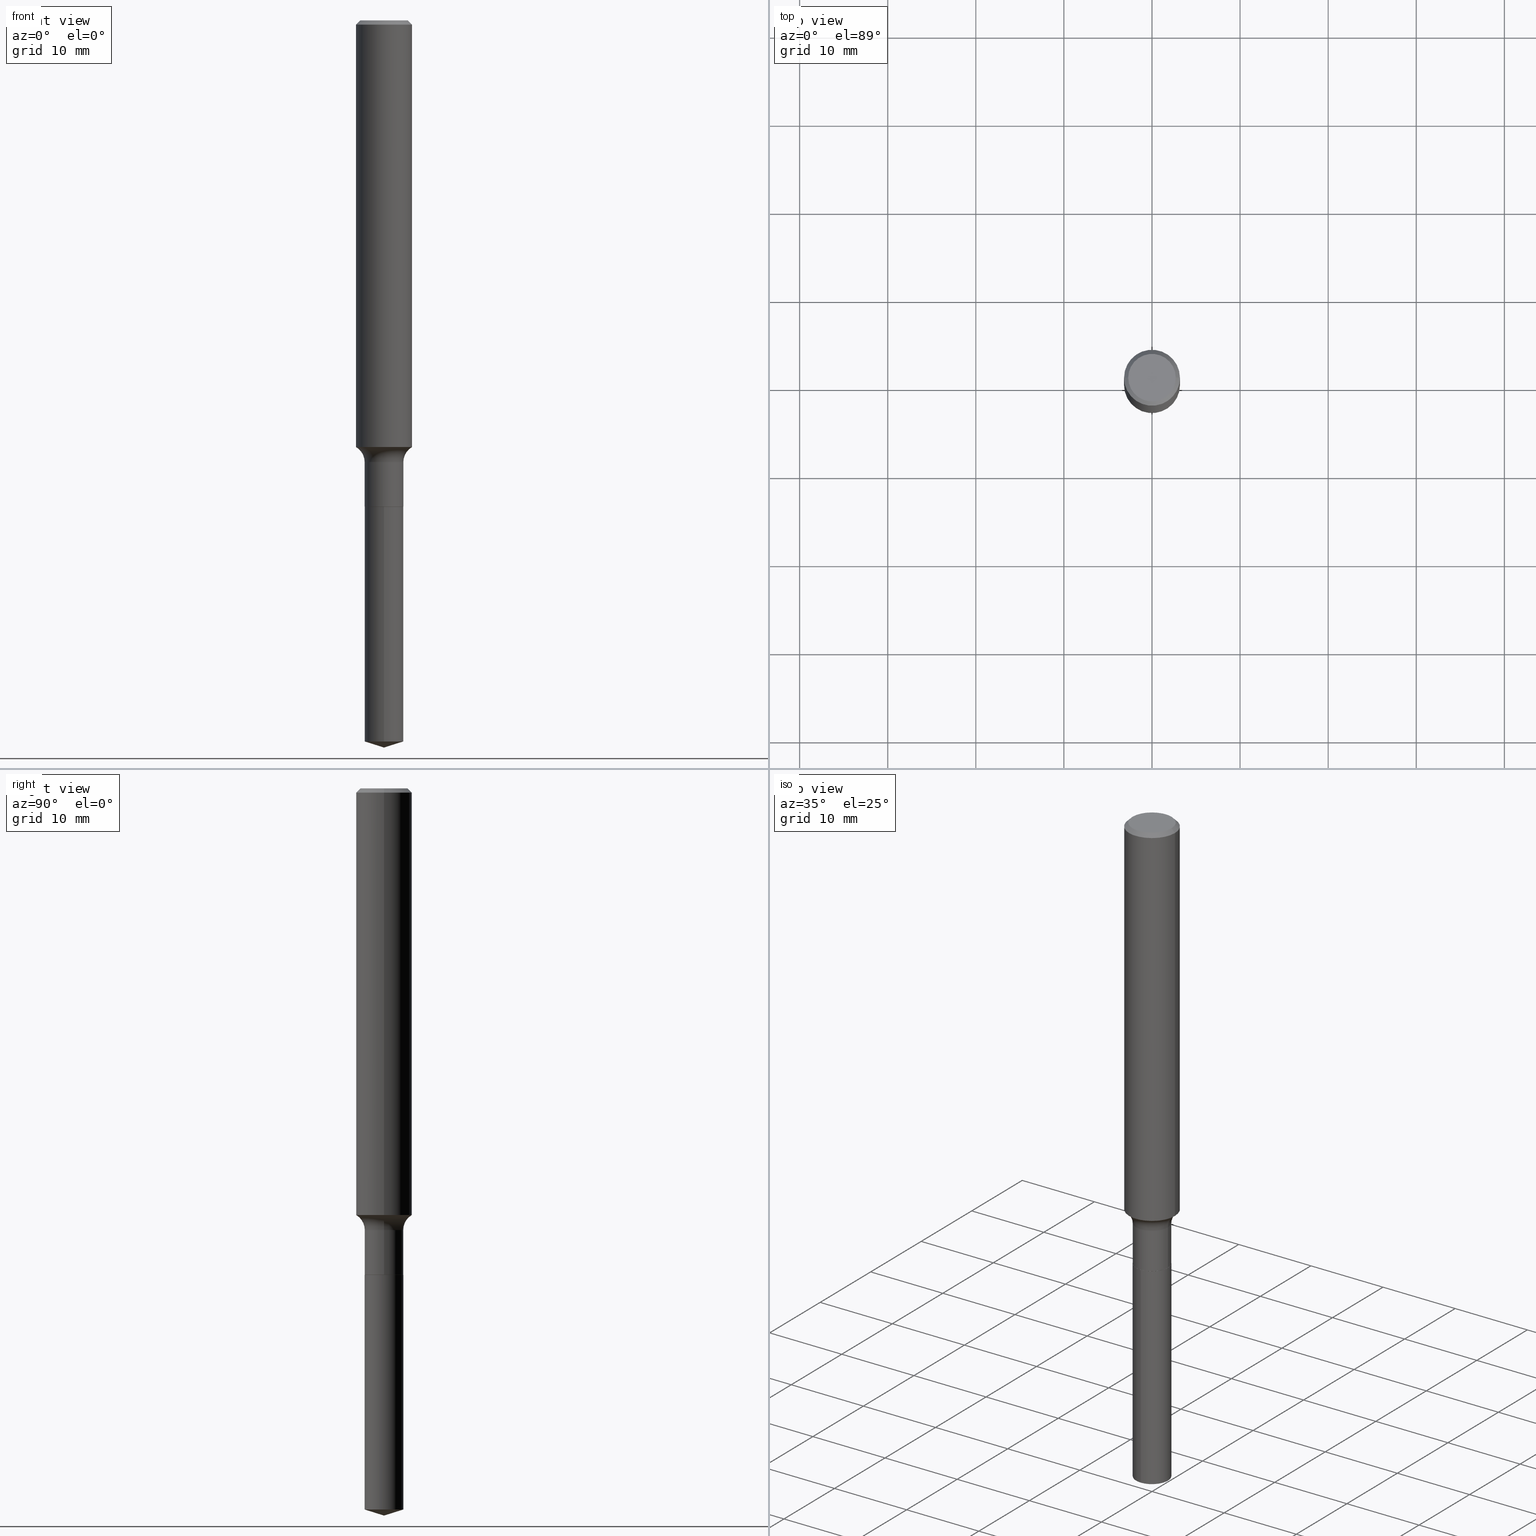
[diagram: canonical four-view strip — front | top / right | iso, engineering-drawing reading convention]
A machine part, canonical four-view strip (front | top / right | iso — engineering-drawing reading convention). The complete STEP part file that produces these views, byte-faithful:
ISO-10303-21;
HEADER;
FILE_DESCRIPTION (( 'STEP AP203' ),
    '1' );
FILE_NAME ('52326.STEP',
    '2024-04-19T13:40:14',
    ( '' ),
    ( '' ),
    'SwSTEP 2.0',
    'SolidWorks 2023',
    '' );
FILE_SCHEMA (( 'CONFIG_CONTROL_DESIGN' ));
ENDSEC;

DATA;
#1 = FACE_OUTER_BOUND ( 'NONE', #270, .T. ) ;
#2 = ORIENTED_EDGE ( 'NONE', *, *, #389, .T. ) ;
#3 = APPROVAL_PERSON_ORGANIZATION ( #450, #483, #37 ) ;
#4 = ORIENTED_EDGE ( 'NONE', *, *, #62, .T. ) ;
#5 = EDGE_CURVE ( 'NONE', #45, #485, #30, .T. ) ;
#6 = AXIS2_PLACEMENT_3D ( 'NONE', #164, #478, #11 ) ;
#7 = DIRECTION ( 'NONE',  ( -2.445468806185136597E-29, 3.491481338843145583E-15, 1.000000000000000000 ) ) ;
#8 = VERTEX_POINT ( 'NONE', #333 ) ;
#9 = APPROVAL ( #373, 'UNSPECIFIED' ) ;
#10 = LINE ( 'NONE', #88, #301 ) ;
#11 = DIRECTION ( 'NONE',  ( 1.000000000000000000, -6.982962677686261977E-15, 0.000000000000000000 ) ) ;
#12 = APPLICATION_CONTEXT ( 'configuration controlled 3d designs of mechanical parts and assemblies' ) ;
#13 = ORIENTED_EDGE ( 'NONE', *, *, #188, .F. ) ;
#14 = CARTESIAN_POINT ( 'NONE',  ( -0.1644999999999999796, -5.723341362551005164E-15, -1.973999999999999977 ) ) ;
#15 = ORIENTED_EDGE ( 'NONE', *, *, #20, .T. ) ;
#16 = AXIS2_PLACEMENT_3D ( 'NONE', #467, #206, #208 ) ;
#17 = DIRECTION ( 'NONE',  ( -2.445468806185136597E-29, 3.491481338843145583E-15, 1.000000000000000000 ) ) ;
#18 = CARTESIAN_POINT ( 'NONE',  ( 0.1250000000000001388, -8.728703347107843249E-16, 6.095220969744926748E-30 ) ) ;
#19 = CIRCLE ( 'NONE', #197, 0.08649999999999997968 ) ;
#20 = EDGE_CURVE ( 'NONE', #103, #485, #354, .T. ) ;
#21 = DIRECTION ( 'NONE',  ( -2.445486309899650954E-29, 3.491456272527711520E-15, 1.000000000000000000 ) ) ;
#22 = DIRECTION ( 'NONE',  ( 1.000000000000000000, -6.982962677686266711E-15, 4.883557194083112901E-29 ) ) ;
#23 = CARTESIAN_POINT ( 'NONE',  ( 5.314003715840301789E-29, -7.586988949306155855E-15, -2.173000000000000043 ) ) ;
#24 = CYLINDRICAL_SURFACE ( 'NONE', #68, 0.1250000000000001388 ) ;
#25 = DIRECTION ( 'NONE',  ( 1.000000000000000000, -6.982962677686266711E-15, 4.876176775795935793E-29 ) ) ;
#26 = CARTESIAN_POINT ( 'NONE',  ( -0.1250000000000001388, 8.881784197001262184E-16, -6.148668862818638533E-30 ) ) ;
#27 = DIRECTION ( 'NONE',  ( -2.445468806185136597E-29, 3.491481338843145583E-15, 1.000000000000000000 ) ) ;
#28 = ADVANCED_FACE ( 'NONE', ( #360 ), #24, .T. ) ;
#29 = ORIENTED_EDGE ( 'NONE', *, *, #428, .T. ) ;
#30 = LINE ( 'NONE', #69, #418 ) ;
#31 = PRODUCT ( '52326', '52326', '', ( #406 ) ) ;
#32 = CARTESIAN_POINT ( 'NONE',  ( -0.08649999999999997968, 6.146194664324865164E-16, -4.254878853070492988E-30 ) ) ;
#33 = DIRECTION ( 'NONE',  ( 1.000000000000000000, -6.982962677686265922E-15, 4.876176775795935793E-29 ) ) ;
#34 = COORDINATED_UNIVERSAL_TIME_OFFSET ( 5, 0, .BEHIND. ) ;
#35 = APPROVAL_STATUS ( 'not_yet_approved' ) ;
#36 = LOCAL_TIME ( 9, 40, 14.00000000000000000, #303 ) ;
#37 = APPROVAL_ROLE ( '' ) ;
#38 = DATE_AND_TIME ( #419, #319 ) ;
#39 = ADVANCED_FACE ( 'NONE', ( #250 ), #179, .F. ) ;
#40 = AXIS2_PLACEMENT_3D ( 'NONE', #133, #283, #139 ) ;
#41 = AXIS2_PLACEMENT_3D ( 'NONE', #172, #175, #185 ) ;
#42 = APPROVAL_DATE_TIME ( #38, #483 ) ;
#43 = LOCAL_TIME ( 9, 40, 14.00000000000000000, #34 ) ;
#44 = EDGE_CURVE ( 'NONE', #45, #315, #491, .T. ) ;
#45 = VERTEX_POINT ( 'NONE', #116 ) ;
#46 = FACE_OUTER_BOUND ( 'NONE', #347, .T. ) ;
#47 = EDGE_LOOP ( 'NONE', ( #479, #233, #130, #289 ) ) ;
#48 = CIRCLE ( 'NONE', #379, 0.08599999999999997924 ) ;
#49 = CYLINDRICAL_SURFACE ( 'NONE', #380, 0.08649999999999997968 ) ;
#50 = CYLINDRICAL_SURFACE ( 'NONE', #489, 0.08649999999999997968 ) ;
#51 = VERTEX_POINT ( 'NONE', #330 ) ;
#52 = CARTESIAN_POINT ( 'NONE',  ( 5.314003715840301789E-29, -7.586988949306155855E-15, -2.173000000000000043 ) ) ;
#53 = DIRECTION ( 'NONE',  ( -1.000000000000000000, 7.105427357601008170E-15, 0.000000000000000000 ) ) ;
#54 = DIRECTION ( 'NONE',  ( -6.982962677686265922E-15, -1.000000000000000000, 3.158205773022270164E-15 ) ) ;
#55 = ADVANCED_FACE ( 'NONE', ( #144 ), #150, .F. ) ;
#56 = CARTESIAN_POINT ( 'NONE',  ( 5.314003715840301789E-29, -7.586988949306155855E-15, -2.173000000000000043 ) ) ;
#57 = AXIS2_PLACEMENT_3D ( 'NONE', #257, #331, #364 ) ;
#58 = FACE_OUTER_BOUND ( 'NONE', #465, .T. ) ;
#59 = CC_DESIGN_SECURITY_CLASSIFICATION ( #440, ( #456 ) ) ;
#60 = DIRECTION ( 'NONE',  ( -2.445468806185136597E-29, 3.491481338843145583E-15, 1.000000000000000000 ) ) ;
#61 = CARTESIAN_POINT ( 'NONE',  ( 5.312780981437210108E-29, -7.585243208636733562E-15, -2.172500000000000320 ) ) ;
#62 = EDGE_CURVE ( 'NONE', #315, #45, #221, .T. ) ;
#63 = EDGE_LOOP ( 'NONE', ( #438, #170, #385, #288 ) ) ;
#64 = DIRECTION ( 'NONE',  ( -2.445468806185136877E-29, 3.491481338843145188E-15, 1.000000000000000000 ) ) ;
#65 = CARTESIAN_POINT ( 'NONE',  ( 5.314003715840301789E-29, -7.586988949306155855E-15, -2.173000000000000043 ) ) ;
#66 = ORIENTED_EDGE ( 'NONE', *, *, #474, .T. ) ;
#67 =( NAMED_UNIT ( * ) PLANE_ANGLE_UNIT ( ) SI_UNIT ( $, .RADIAN. ) );
#68 = AXIS2_PLACEMENT_3D ( 'NONE', #111, #27, #222 ) ;
#69 = CARTESIAN_POINT ( 'NONE',  ( 6.146194664325395673E-16, 0.08649999999999240241, -2.173000000000000487 ) ) ;
#70 = VERTEX_POINT ( 'NONE', #323 ) ;
#71 = DIRECTION ( 'NONE',  ( -2.445468806185136597E-29, 3.491481338843145583E-15, 1.000000000000000000 ) ) ;
#72 = PERSON_AND_ORGANIZATION_ROLE ( 'creator' ) ;
#73 = EDGE_CURVE ( 'NONE', #8, #459, #136, .T. ) ;
#74 = APPROVAL_DATE_TIME ( #122, #9 ) ;
#75 = LOCAL_TIME ( 9, 40, 14.00000000000000000, #335 ) ;
#76 = AXIS2_PLACEMENT_3D ( 'NONE', #317, #101, #213 ) ;
#77 = EDGE_CURVE ( 'NONE', #371, #99, #227, .T. ) ;
#78 = PERSON_AND_ORGANIZATION_ROLE ( 'design_supplier' ) ;
#79 = COORDINATED_UNIVERSAL_TIME_OFFSET ( 5, 0, .BEHIND. ) ;
#80 = CONICAL_SURFACE ( 'NONE', #232, 0.08599999999999997924, 0.7853981633975507526 ) ;
#81 = CONICAL_SURFACE ( 'NONE', #446, 0.08599999999999997924, 0.7853981633975507526 ) ;
#82 = TOROIDAL_SURFACE ( 'NONE', #486, 0.1644999999999999796, 0.07800000000000004152 ) ;
#83 = ADVANCED_FACE ( 'NONE', ( #1 ), #300, .T. ) ;
#84 = ORIENTED_EDGE ( 'NONE', *, *, #339, .F. ) ;
#85 = VERTEX_POINT ( 'NONE', #328 ) ;
#86 = DIRECTION ( 'NONE',  ( -2.445468806185136597E-29, 3.491481338843145583E-15, 1.000000000000000000 ) ) ;
#87 = CC_DESIGN_DATE_AND_TIME_ASSIGNMENT ( #105, #212, ( #487 ) ) ;
#88 = CARTESIAN_POINT ( 'NONE',  ( -6.040262716198086804E-16, -0.08650000000000757083, -2.172999999999999599 ) ) ;
#89 = DIRECTION ( 'NONE',  ( 1.000000000000000000, -6.982962677686266711E-15, 0.000000000000000000 ) ) ;
#90 = CARTESIAN_POINT ( 'NONE',  ( 4.585254011597165626E-31, -6.546527510330947764E-17, -0.01875000000000014155 ) ) ;
#91 = AXIS2_PLACEMENT_3D ( 'NONE', #262, #21, #326 ) ;
#92 = CARTESIAN_POINT ( 'NONE',  ( 7.947831174227997735E-29, -1.134723288571506362E-14, -3.250000000000000000 ) ) ;
#93 = DIRECTION ( 'NONE',  ( 7.105427357601001859E-15, 1.000000000000000000, -3.491481338843145583E-15 ) ) ;
#94 = VERTEX_POINT ( 'NONE', #207 ) ;
#95 = EDGE_CURVE ( 'NONE', #307, #162, #131, .T. ) ;
#96 = CARTESIAN_POINT ( 'NONE',  ( 5.312780981437210108E-29, -7.585243208636733562E-15, -2.172500000000000320 ) ) ;
#97 = ADVANCED_BREP_SHAPE_REPRESENTATION ( '52326', ( #205, #367, #399 ), #466 ) ;
#98 = DIRECTION ( 'NONE',  ( -2.445468806185136597E-29, 3.491481338843145583E-15, 1.000000000000000000 ) ) ;
#99 = VERTEX_POINT ( 'NONE', #404 ) ;
#100 = CYLINDRICAL_SURFACE ( 'NONE', #342, 0.1250000000000001388 ) ;
#101 = DIRECTION ( 'NONE',  ( -2.445468806185136597E-29, 3.491481338843145583E-15, 1.000000000000000000 ) ) ;
#102 = ORIENTED_EDGE ( 'NONE', *, *, #428, .F. ) ;
#103 = VERTEX_POINT ( 'NONE', #275 ) ;
#104 = ORGANIZATION ( 'UNSPECIFIED', 'UNSPECIFIED', '' ) ;
#105 = DATE_AND_TIME ( #439, #75 ) ;
#106 = CLOSED_SHELL ( 'NONE', ( #256, #451, #416, #230, #480 ) ) ;
#107 = CARTESIAN_POINT ( 'NONE',  ( 0.08649999999999997968, -6.040262716198619285E-16, 4.217892911063483312E-30 ) ) ;
#108 = EDGE_CURVE ( 'NONE', #99, #51, #437, .T. ) ;
#109 = ORIENTED_EDGE ( 'NONE', *, *, #62, .F. ) ;
#110 = DIRECTION ( 'NONE',  ( -6.982962677686265922E-15, -1.000000000000000000, 3.158205773022270164E-15 ) ) ;
#111 = CARTESIAN_POINT ( 'NONE',  ( 0.000000000000000000, 0.000000000000000000, 0.000000000000000000 ) ) ;
#112 = CARTESIAN_POINT ( 'NONE',  ( 6.146194664325655011E-16, 0.08649999999999240241, -2.173000000000000487 ) ) ;
#113 = AXIS2_PLACEMENT_3D ( 'NONE', #430, #203, #443 ) ;
#114 = CIRCLE ( 'NONE', #6, 0.08649999999999996581 ) ;
#115 = CIRCLE ( 'NONE', #417, 0.08599999999999997924 ) ;
#116 = CARTESIAN_POINT ( 'NONE',  ( 6.146194664325653039E-16, 0.08649999999998869704, -3.222726654761968401 ) ) ;
#117 = APPROVAL_DATE_TIME ( #449, #118 ) ;
#118 = APPROVAL ( #35, 'UNSPECIFIED' ) ;
#119 = PERSON_AND_ORGANIZATION ( #378, #104 ) ;
#120 = EDGE_CURVE ( 'NONE', #70, #8, #48, .T. ) ;
#121 = CIRCLE ( 'NONE', #182, 0.07800000000000002764 ) ;
#122 = DATE_AND_TIME ( #453, #36 ) ;
#123 = EDGE_LOOP ( 'NONE', ( #84, #484 ) ) ;
#124 = DIRECTION ( 'NONE',  ( -2.445468806185136597E-29, 3.491481338843145583E-15, 1.000000000000000000 ) ) ;
#125 = ORIENTED_EDGE ( 'NONE', *, *, #210, .F. ) ;
#126 = EDGE_LOOP ( 'NONE', ( #29, #195 ) ) ;
#127 = CARTESIAN_POINT ( 'NONE',  ( -6.040262716197829438E-16, -0.08650000000001123457, -3.222726654761967069 ) ) ;
#128 = PLANE ( 'NONE',  #113 ) ;
#129 = EDGE_CURVE ( 'NONE', #194, #94, #114, .T. ) ;
#130 = ORIENTED_EDGE ( 'NONE', *, *, #349, .F. ) ;
#131 = CIRCLE ( 'NONE', #261, 0.1062499999999999972 ) ;
#132 = DIRECTION ( 'NONE',  ( -2.445468806185136597E-29, 3.491481338843145583E-15, 1.000000000000000000 ) ) ;
#133 = CARTESIAN_POINT ( 'NONE',  ( 0.1644999999999999796, -8.040881523355760982E-15, -1.973999999999999977 ) ) ;
#134 = CARTESIAN_POINT ( 'NONE',  ( 7.947754436030587061E-29, -1.134734182392194108E-14, -3.250000000000000000 ) ) ;
#135 = CARTESIAN_POINT ( 'NONE',  ( -0.1062499999999999972, 7.746724220558198188E-16, 6.505936120465015526E-18 ) ) ;
#136 = LINE ( 'NONE', #488, #374 ) ;
#137 = DIRECTION ( 'NONE',  ( -2.445468806185136597E-29, 3.491481338843145583E-15, 1.000000000000000000 ) ) ;
#138 = EDGE_CURVE ( 'NONE', #94, #194, #290, .T. ) ;
#139 = DIRECTION ( 'NONE',  ( 1.000000000000000000, -6.982962677686268288E-15, 0.000000000000000000 ) ) ;
#140 = LENGTH_MEASURE_WITH_UNIT ( LENGTH_MEASURE( 0.02539999999999999897 ), #176 );
#141 = CIRCLE ( 'NONE', #338, 0.1250000000000002776 ) ;
#142 = DIRECTION ( 'NONE',  ( 1.000000000000000000, -6.982962677686270655E-15, 0.000000000000000000 ) ) ;
#143 = EDGE_LOOP ( 'NONE', ( #329, #481, #239 ) ) ;
#144 = FACE_OUTER_BOUND ( 'NONE', #462, .T. ) ;
#145 = ORIENTED_EDGE ( 'NONE', *, *, #171, .F. ) ;
#146 =( CONVERSION_BASED_UNIT ( 'INCH', #140 ) LENGTH_UNIT ( ) NAMED_UNIT ( #490 ) );
#147 = EDGE_CURVE ( 'NONE', #99, #371, #141, .T. ) ;
#148 = ORIENTED_EDGE ( 'NONE', *, *, #95, .F. ) ;
#149 = PLANE ( 'NONE',  #355 ) ;
#150 = TOROIDAL_SURFACE ( 'NONE', #251, 0.1644999999999999796, 0.07800000000000004152 ) ;
#151 = CONICAL_SURFACE ( 'NONE', #16, 124.8659371009128307, 1.265363707695886575 ) ;
#152 = ADVANCED_FACE ( 'NONE', ( #395 ), #388, .T. ) ;
#153 = DATE_AND_TIME ( #265, #226 ) ;
#154 = PRODUCT_RELATED_PRODUCT_CATEGORY ( 'detail', '', ( #31 ) ) ;
#155 = CIRCLE ( 'NONE', #40, 0.07800000000000002764 ) ;
#156 = EDGE_CURVE ( 'NONE', #371, #94, #121, .T. ) ;
#157 = CC_DESIGN_APPROVAL ( #9, ( #456 ) ) ;
#158 = CARTESIAN_POINT ( 'NONE',  ( 0.000000000000000000, 0.000000000000000000, 0.000000000000000000 ) ) ;
#159 = DIRECTION ( 'NONE',  ( -2.445486309899651234E-29, 3.491456272527711520E-15, 1.000000000000000000 ) ) ;
#160 = EDGE_CURVE ( 'NONE', #371, #444, #321, .T. ) ;
#161 = FACE_OUTER_BOUND ( 'NONE', #126, .T. ) ;
#162 = VERTEX_POINT ( 'NONE', #135 ) ;
#163 = DIRECTION ( 'NONE',  ( -2.445486309899650954E-29, 3.491456272527711520E-15, 1.000000000000000000 ) ) ;
#164 = CARTESIAN_POINT ( 'NONE',  ( 4.827355423409459288E-29, -6.892184162876369824E-15, -1.973999999999999977 ) ) ;
#165 = AXIS2_PLACEMENT_3D ( 'NONE', #65, #216, #110 ) ;
#166 = ORIENTED_EDGE ( 'NONE', *, *, #156, .T. ) ;
#167 = AXIS2_PLACEMENT_3D ( 'NONE', #434, #98, #89 ) ;
#168 = DIRECTION ( 'NONE',  ( 1.000000000000000000, -6.982962677686266711E-15, 4.876176775795935793E-29 ) ) ;
#169 = CARTESIAN_POINT ( 'NONE',  ( 4.585254011597165626E-31, -6.546527510330947764E-17, -0.01875000000000014155 ) ) ;
#170 = ORIENTED_EDGE ( 'NONE', *, *, #44, .T. ) ;
#171 = EDGE_CURVE ( 'NONE', #85, #459, #240, .T. ) ;
#172 = CARTESIAN_POINT ( 'NONE',  ( 7.881095879197450537E-29, -1.125206366251435864E-14, -3.222726654761967957 ) ) ;
#173 = CARTESIAN_POINT ( 'NONE',  ( -0.1250000000000000000, 8.074050596074738982E-16, -0.01875000000000014155 ) ) ;
#174 = DIRECTION ( 'NONE',  ( -2.445468806185136597E-29, 3.491481338843145583E-15, 1.000000000000000000 ) ) ;
#175 = DIRECTION ( 'NONE',  ( -2.445486309899650954E-29, 3.491456272527711520E-15, 1.000000000000000000 ) ) ;
#176 =( LENGTH_UNIT ( ) NAMED_UNIT ( * ) SI_UNIT ( $, .METRE. ) );
#177 = CARTESIAN_POINT ( 'NONE',  ( -0.08599999999999997924, -6.975922196552469152E-15, -2.173000000000000043 ) ) ;
#178 = ORIENTED_EDGE ( 'NONE', *, *, #156, .F. ) ;
#179 = PLANE ( 'NONE',  #423 ) ;
#180 = CC_DESIGN_APPROVAL ( #483, ( #440 ) ) ;
#181 = PERSON_AND_ORGANIZATION_ROLE ( 'design_owner' ) ;
#182 = AXIS2_PLACEMENT_3D ( 'NONE', #14, #93, #53 ) ;
#183 = DIRECTION ( 'NONE',  ( -2.445486309899651234E-29, 3.491456272527711520E-15, 1.000000000000000000 ) ) ;
#184 = ADVANCED_FACE ( 'NONE', ( #248 ), #81, .T. ) ;
#185 = DIRECTION ( 'NONE',  ( -6.982962677686265922E-15, -1.000000000000000000, 6.316411546044540328E-15 ) ) ;
#186 = DIRECTION ( 'NONE',  ( 2.445486309899650674E-29, -3.491456272527711520E-15, -1.000000000000000000 ) ) ;
#187 = APPROVAL_PERSON_ORGANIZATION ( #445, #118, #223 ) ;
#188 = EDGE_CURVE ( 'NONE', #99, #194, #155, .T. ) ;
#189 = COORDINATED_UNIVERSAL_TIME_OFFSET ( 5, 0, .BEHIND. ) ;
#190 = CIRCLE ( 'NONE', #287, 0.08649999999999997968 ) ;
#191 = AXIS2_PLACEMENT_3D ( 'NONE', #435, #340, #461 ) ;
#192 = VECTOR ( 'NONE', #64, 39.37007874015748143 ) ;
#193 = CC_DESIGN_PERSON_AND_ORGANIZATION_ASSIGNMENT ( #334, #181, ( #31 ) ) ;
#194 = VERTEX_POINT ( 'NONE', #286 ) ;
#195 = ORIENTED_EDGE ( 'NONE', *, *, #95, .T. ) ;
#196 = CYLINDRICAL_SURFACE ( 'NONE', #269, 0.08649999999999997968 ) ;
#197 = AXIS2_PLACEMENT_3D ( 'NONE', #348, #163, #54 ) ;
#198 = ORIENTED_EDGE ( 'NONE', *, *, #73, .T. ) ;
#199 = EDGE_CURVE ( 'NONE', #459, #194, #279, .T. ) ;
#200 = DIRECTION ( 'NONE',  ( 1.000000000000000000, -6.982962677686266711E-15, 4.876176775795935793E-29 ) ) ;
#201 = DIRECTION ( 'NONE',  ( -2.445486309899650954E-29, 3.491456272527711520E-15, 1.000000000000000000 ) ) ;
#202 = DIRECTION ( 'NONE',  ( -6.659769872151621044E-15, -0.9537169507482251563, 0.3007057995042787257 ) ) ;
#203 = DIRECTION ( 'NONE',  ( 2.438088387897960049E-29, -3.491481338843145188E-15, -1.000000000000000000 ) ) ;
#204 = EDGE_LOOP ( 'NONE', ( #15, #2 ) ) ;
#205 = MANIFOLD_SOLID_BREP ( 'Body-Move/Copy2[1]', #106 ) ;
#206 = DIRECTION ( 'NONE',  ( -2.445486309899650954E-29, 3.491456272527711520E-15, 1.000000000000000000 ) ) ;
#207 = CARTESIAN_POINT ( 'NONE',  ( -0.08649999999999996581, -6.624094219324065275E-15, -1.973999999999999977 ) ) ;
#208 = DIRECTION ( 'NONE',  ( -6.982962677686265922E-15, -1.000000000000000000, 3.500519750498767146E-15 ) ) ;
#209 = DIRECTION ( 'NONE',  ( -1.000000000000000000, 6.982962677686266711E-15, 0.000000000000000000 ) ) ;
#210 = EDGE_CURVE ( 'NONE', #70, #85, #362, .T. ) ;
#211 = EDGE_LOOP ( 'NONE', ( #217, #214, #294, #309 ) ) ;
#212 = DATE_TIME_ROLE ( 'creation_date' ) ;
#213 = DIRECTION ( 'NONE',  ( 1.000000000000000000, -6.982962677686261977E-15, 0.000000000000000000 ) ) ;
#214 = ORIENTED_EDGE ( 'NONE', *, *, #77, .T. ) ;
#215 = DIRECTION ( 'NONE',  ( 6.982962677686265922E-15, 1.000000000000000000, -3.491456272527711520E-15 ) ) ;
#216 = DIRECTION ( 'NONE',  ( -2.445486309899650954E-29, 3.491456272527711520E-15, 1.000000000000000000 ) ) ;
#217 = ORIENTED_EDGE ( 'NONE', *, *, #160, .F. ) ;
#218 = VECTOR ( 'NONE', #202, 39.37007874015748143 ) ;
#219 = ORIENTED_EDGE ( 'NONE', *, *, #147, .F. ) ;
#220 = EDGE_CURVE ( 'NONE', #444, #51, #298, .T. ) ;
#221 = CIRCLE ( 'NONE', #91, 0.08649999999999997968 ) ;
#222 = DIRECTION ( 'NONE',  ( 1.000000000000000000, -6.982962677686266711E-15, 4.876176775795935793E-29 ) ) ;
#223 = APPROVAL_ROLE ( '' ) ;
#224 = DIRECTION ( 'NONE',  ( 0.000000000000000000, 0.000000000000000000, 1.000000000000000000 ) ) ;
#225 = SHAPE_DEFINITION_REPRESENTATION ( #413, #97 ) ;
#226 = LOCAL_TIME ( 9, 40, 14.00000000000000000, #189 ) ;
#227 = CIRCLE ( 'NONE', #191, 0.1250000000000002776 ) ;
#228 = CC_DESIGN_DATE_AND_TIME_ASSIGNMENT ( #153, #377, ( #440 ) ) ;
#229 = PERSON_AND_ORGANIZATION_ROLE ( 'creator' ) ;
#230 = ADVANCED_FACE ( 'NONE', ( #238 ), #50, .T. ) ;
#231 = CIRCLE ( 'NONE', #424, 0.1062499999999999972 ) ;
#232 = AXIS2_PLACEMENT_3D ( 'NONE', #52, #17, #272 ) ;
#233 = ORIENTED_EDGE ( 'NONE', *, *, #210, .T. ) ;
#234 = ORIENTED_EDGE ( 'NONE', *, *, #129, .F. ) ;
#235 = CARTESIAN_POINT ( 'NONE',  ( 0.000000000000000000, 0.000000000000000000, 0.000000000000000000 ) ) ;
#236 = ADVANCED_FACE ( 'NONE', ( #161 ), #128, .F. ) ;
#237 = CARTESIAN_POINT ( 'NONE',  ( 4.827355423409459288E-29, -6.892184162876369824E-15, -1.973999999999999977 ) ) ;
#238 = FACE_OUTER_BOUND ( 'NONE', #63, .T. ) ;
#239 = ORIENTED_EDGE ( 'NONE', *, *, #44, .F. ) ;
#240 = CIRCLE ( 'NONE', #304, 0.08649999999999997968 ) ;
#241 = DIRECTION ( 'NONE',  ( 6.776566513254246305E-15, 0.9537169507482272657, 0.3007057995042720644 ) ) ;
#242 = DIRECTION ( 'NONE',  ( -2.445468806185136877E-29, 3.491481338843145188E-15, 1.000000000000000000 ) ) ;
#243 = ORIENTED_EDGE ( 'NONE', *, *, #305, .F. ) ;
#244 = FACE_OUTER_BOUND ( 'NONE', #293, .T. ) ;
#245 = DIRECTION ( 'NONE',  ( 1.000000000000000000, -6.982962677686266711E-15, 0.000000000000000000 ) ) ;
#246 = EDGE_LOOP ( 'NONE', ( #148, #426, #470, #306 ) ) ;
#247 = DIRECTION ( 'NONE',  ( -0.7071067811865447972, 2.468850131082228662E-15, -0.7071067811865501263 ) ) ;
#248 = FACE_OUTER_BOUND ( 'NONE', #312, .T. ) ;
#249 = APPROVAL_PERSON_ORGANIZATION ( #361, #9, #346 ) ;
#250 = FACE_OUTER_BOUND ( 'NONE', #123, .T. ) ;
#251 = AXIS2_PLACEMENT_3D ( 'NONE', #447, #71, #356 ) ;
#252 = DIRECTION ( 'NONE',  ( -2.445468806185136877E-29, 3.491481338843145188E-15, 1.000000000000000000 ) ) ;
#253 = EDGE_LOOP ( 'NONE', ( #178, #219, #365, #382 ) ) ;
#254 = FACE_OUTER_BOUND ( 'NONE', #318, .T. ) ;
#255 = ORIENTED_EDGE ( 'NONE', *, *, #120, .T. ) ;
#256 = ADVANCED_FACE ( 'NONE', ( #254 ), #407, .T. ) ;
#257 = CARTESIAN_POINT ( 'NONE',  ( 4.585254011597165626E-31, -6.546527510330947764E-17, -0.01875000000000014155 ) ) ;
#258 = CC_DESIGN_APPROVAL ( #118, ( #487 ) ) ;
#259 = VERTEX_POINT ( 'NONE', #344 ) ;
#260 = CARTESIAN_POINT ( 'NONE',  ( 5.314003715840301789E-29, -7.586988949306155855E-15, -2.173000000000000043 ) ) ;
#261 = AXIS2_PLACEMENT_3D ( 'NONE', #387, #473, #353 ) ;
#262 = CARTESIAN_POINT ( 'NONE',  ( 7.881095879197450537E-29, -1.125206366251435864E-14, -3.222726654761967957 ) ) ;
#263 = ORIENTED_EDGE ( 'NONE', *, *, #108, .F. ) ;
#264 = CLOSED_SHELL ( 'NONE', ( #271, #152, #336, #55, #302, #454, #266, #28, #83, #236, #39, #184 ) ) ;
#265 = CALENDAR_DATE ( 2024, 19, 4 ) ;
#266 = ADVANCED_FACE ( 'NONE', ( #386 ), #82, .F. ) ;
#267 = PERSON_AND_ORGANIZATION ( #378, #104 ) ;
#268 = CC_DESIGN_PERSON_AND_ORGANIZATION_ASSIGNMENT ( #119, #455, ( #440 ) ) ;
#269 = AXIS2_PLACEMENT_3D ( 'NONE', #341, #7, #25 ) ;
#270 = EDGE_LOOP ( 'NONE', ( #243, #102, #414, #343 ) ) ;
#271 = ADVANCED_FACE ( 'NONE', ( #394 ), #80, .T. ) ;
#272 = DIRECTION ( 'NONE',  ( 1.000000000000000000, -6.982962677686266711E-15, 0.000000000000000000 ) ) ;
#273 = DIRECTION ( 'NONE',  ( -2.445468806185136597E-29, 3.491481338843145583E-15, 1.000000000000000000 ) ) ;
#274 = VECTOR ( 'NONE', #242, 39.37007874015748143 ) ;
#275 = CARTESIAN_POINT ( 'NONE',  ( -6.040262716198086804E-16, -0.08650000000000757083, -2.172999999999999599 ) ) ;
#276 = ORIENTED_EDGE ( 'NONE', *, *, #375, .F. ) ;
#277 = ORIENTED_EDGE ( 'NONE', *, *, #138, .F. ) ;
#278 = FACE_OUTER_BOUND ( 'NONE', #332, .T. ) ;
#279 = LINE ( 'NONE', #107, #274 ) ;
#280 = UNCERTAINTY_MEASURE_WITH_UNIT (LENGTH_MEASURE( 1.000000000000000082E-05 ), #146, 'distance_accuracy_value', 'NONE');
#281 = EDGE_CURVE ( 'NONE', #315, #103, #10, .T. ) ;
#282 = DIRECTION ( 'NONE',  ( 1.000000000000000000, -6.982962677686266711E-15, 0.000000000000000000 ) ) ;
#283 = DIRECTION ( 'NONE',  ( -6.982962677686266711E-15, -1.000000000000000000, 3.491481338843145583E-15 ) ) ;
#284 = ORIENTED_EDGE ( 'NONE', *, *, #492, .F. ) ;
#285 = DIRECTION ( 'NONE',  ( 1.000000000000000000, 0.000000000000000000, 0.000000000000000000 ) ) ;
#286 = CARTESIAN_POINT ( 'NONE',  ( 0.08649999999999996581, -7.496210434496231358E-15, -1.973999999999999977 ) ) ;
#287 = AXIS2_PLACEMENT_3D ( 'NONE', #96, #124, #357 ) ;
#288 = ORIENTED_EDGE ( 'NONE', *, *, #389, .F. ) ;
#289 = ORIENTED_EDGE ( 'NONE', *, *, #73, .F. ) ;
#290 = CIRCLE ( 'NONE', #76, 0.08649999999999996581 ) ;
#291 = CARTESIAN_POINT ( 'NONE',  ( 0.000000000000000000, 0.000000000000000000, 0.000000000000000000 ) ) ;
#292 = DIRECTION ( 'NONE',  ( -0.7071067811866199593, 7.493145998870616062E-15, 0.7071067811864750752 ) ) ;
#293 = EDGE_LOOP ( 'NONE', ( #397, #442, #284, #263 ) ) ;
#294 = ORIENTED_EDGE ( 'NONE', *, *, #108, .T. ) ;
#295 = CC_DESIGN_PERSON_AND_ORGANIZATION_ASSIGNMENT ( #420, #78, ( #456 ) ) ;
#296 = ORIENTED_EDGE ( 'NONE', *, *, #138, .T. ) ;
#297 = APPLICATION_PROTOCOL_DEFINITION ( 'international standard', 'config_control_design', 1994, #421 ) ;
#298 = CIRCLE ( 'NONE', #167, 0.1250000000000000000 ) ;
#299 = CALENDAR_DATE ( 2024, 19, 4 ) ;
#300 = CONICAL_SURFACE ( 'NONE', #366, 0.1250000000000000000, 0.7853981633974445042 ) ;
#301 = VECTOR ( 'NONE', #159, 39.37007874015748143 ) ;
#302 = ADVANCED_FACE ( 'NONE', ( #278 ), #49, .T. ) ;
#303 = COORDINATED_UNIVERSAL_TIME_OFFSET ( 5, 0, .BEHIND. ) ;
#304 = AXIS2_PLACEMENT_3D ( 'NONE', #61, #469, #464 ) ;
#305 = EDGE_CURVE ( 'NONE', #307, #51, #352, .T. ) ;
#306 = ORIENTED_EDGE ( 'NONE', *, *, #370, .F. ) ;
#307 = VERTEX_POINT ( 'NONE', #313 ) ;
#308 = VECTOR ( 'NONE', #241, 39.37007874015748854 ) ;
#309 = ORIENTED_EDGE ( 'NONE', *, *, #220, .F. ) ;
#310 = DIRECTION ( 'NONE',  ( 0.7071067811865447972, -7.319954787623245001E-15, -0.7071067811865501263 ) ) ;
#311 = ORIENTED_EDGE ( 'NONE', *, *, #20, .F. ) ;
#312 = EDGE_LOOP ( 'NONE', ( #125, #255, #198, #145 ) ) ;
#313 = CARTESIAN_POINT ( 'NONE',  ( 0.1062499999999999972, -8.259777185439879685E-16, 6.505936120475800733E-18 ) ) ;
#314 = DIRECTION ( 'NONE',  ( 2.445468806185136597E-29, -3.491481338843145583E-15, -1.000000000000000000 ) ) ;
#315 = VERTEX_POINT ( 'NONE', #127 ) ;
#316 = FACE_OUTER_BOUND ( 'NONE', #143, .T. ) ;
#317 = CARTESIAN_POINT ( 'NONE',  ( 4.827355423409459288E-29, -6.892184162876369824E-15, -1.973999999999999977 ) ) ;
#318 = EDGE_LOOP ( 'NONE', ( #4, #408, #311, #432 ) ) ;
#319 = LOCAL_TIME ( 9, 40, 14.00000000000000000, #79 ) ;
#320 = CARTESIAN_POINT ( 'NONE',  ( -1.591006383764330940E-46, 2.271535455632768948E-32, 6.505936120470318766E-18 ) ) ;
#321 = LINE ( 'NONE', #26, #468 ) ;
#322 = CC_DESIGN_PERSON_AND_ORGANIZATION_ASSIGNMENT ( #267, #229, ( #456 ) ) ;
#323 = CARTESIAN_POINT ( 'NONE',  ( -0.08599999999999997924, -6.973272969378358740E-15, -2.173000000000000043 ) ) ;
#324 = CARTESIAN_POINT ( 'NONE',  ( -8.833119610712419670E-28, 1.261116210124142317E-13, 36.12007874015748143 ) ) ;
#325 = DIRECTION ( 'NONE',  ( 1.000000000000000000, -6.982962677686266711E-15, 0.000000000000000000 ) ) ;
#326 = DIRECTION ( 'NONE',  ( -6.982962677686265922E-15, -1.000000000000000000, 6.316411546044540328E-15 ) ) ;
#327 =( NAMED_UNIT ( * ) SI_UNIT ( $, .STERADIAN. ) SOLID_ANGLE_UNIT ( ) );
#328 = CARTESIAN_POINT ( 'NONE',  ( -0.08649999999999997968, -6.624094219324065275E-15, -2.172500000000000320 ) ) ;
#329 = ORIENTED_EDGE ( 'NONE', *, *, #359, .F. ) ;
#330 = CARTESIAN_POINT ( 'NONE',  ( 0.1250000000000000000, -9.383356098140928781E-16, -0.01875000000000014155 ) ) ;
#331 = DIRECTION ( 'NONE',  ( -2.445468806185136597E-29, 3.491481338843145583E-15, 1.000000000000000000 ) ) ;
#332 = EDGE_LOOP ( 'NONE', ( #392, #66, #234, #383 ) ) ;
#333 = CARTESIAN_POINT ( 'NONE',  ( 0.08599999999999997924, -8.187523739587173593E-15, -2.173000000000000043 ) ) ;
#334 = PERSON_AND_ORGANIZATION ( #378, #104 ) ;
#335 = COORDINATED_UNIVERSAL_TIME_OFFSET ( 5, 0, .BEHIND. ) ;
#336 = ADVANCED_FACE ( 'NONE', ( #244 ), #100, .T. ) ;
#337 = VECTOR ( 'NONE', #310, 39.37007874015748854 ) ;
#338 = AXIS2_PLACEMENT_3D ( 'NONE', #441, #60, #142 ) ;
#339 = EDGE_CURVE ( 'NONE', #8, #70, #115, .T. ) ;
#340 = DIRECTION ( 'NONE',  ( -2.445468806185136597E-29, 3.491481338843145583E-15, 1.000000000000000000 ) ) ;
#341 = CARTESIAN_POINT ( 'NONE',  ( 0.000000000000000000, 0.000000000000000000, 0.000000000000000000 ) ) ;
#342 = AXIS2_PLACEMENT_3D ( 'NONE', #235, #132, #168 ) ;
#343 = ORIENTED_EDGE ( 'NONE', *, *, #220, .T. ) ;
#344 = CARTESIAN_POINT ( 'NONE',  ( 7.947830507173866021E-29, -1.134723288571506362E-14, -3.250000000000000000 ) ) ;
#345 = DIRECTION ( 'NONE',  ( -6.982962677686265922E-15, -1.000000000000000000, 3.158205773022270164E-15 ) ) ;
#346 = APPROVAL_ROLE ( '' ) ;
#347 = EDGE_LOOP ( 'NONE', ( #351, #396, #393, #277 ) ) ;
#348 = CARTESIAN_POINT ( 'NONE',  ( 5.314003715840301789E-29, -7.586988949306155855E-15, -2.173000000000000043 ) ) ;
#349 = EDGE_CURVE ( 'NONE', #459, #85, #190, .T. ) ;
#350 = DIRECTION ( 'NONE',  ( -2.445468806185136877E-29, 3.491481338843145188E-15, 1.000000000000000000 ) ) ;
#351 = ORIENTED_EDGE ( 'NONE', *, *, #474, .F. ) ;
#352 = LINE ( 'NONE', #463, #337 ) ;
#353 = DIRECTION ( 'NONE',  ( 1.000000000000000000, -6.982962677686266711E-15, 4.875930095424100059E-29 ) ) ;
#354 = CIRCLE ( 'NONE', #458, 0.08649999999999997968 ) ;
#355 = AXIS2_PLACEMENT_3D ( 'NONE', #260, #186, #215 ) ;
#356 = DIRECTION ( 'NONE',  ( 1.000000000000000000, -6.982962677686266711E-15, 4.883557194083112901E-29 ) ) ;
#357 = DIRECTION ( 'NONE',  ( 1.000000000000000000, -6.982962677686272233E-15, 0.000000000000000000 ) ) ;
#358 = DIRECTION ( 'NONE',  ( 2.445468806185136597E-29, -3.491481338843145583E-15, -1.000000000000000000 ) ) ;
#359 = EDGE_CURVE ( 'NONE', #259, #45, #429, .T. ) ;
#360 = FACE_OUTER_BOUND ( 'NONE', #211, .T. ) ;
#361 = PERSON_AND_ORGANIZATION ( #378, #104 ) ;
#362 = LINE ( 'NONE', #177, #448 ) ;
#363 = DIRECTION ( 'NONE',  ( -6.982962677686265922E-15, -1.000000000000000000, 3.158205773022270164E-15 ) ) ;
#364 = DIRECTION ( 'NONE',  ( 1.000000000000000000, -6.982962677686266711E-15, 0.000000000000000000 ) ) ;
#365 = ORIENTED_EDGE ( 'NONE', *, *, #188, .T. ) ;
#366 = AXIS2_PLACEMENT_3D ( 'NONE', #90, #314, #391 ) ;
#367 = MANIFOLD_SOLID_BREP ( 'Body-Move/Copy2[2]', #264 ) ;
#368 = DIRECTION ( 'NONE',  ( -2.438088387897960049E-29, 3.491481338843145188E-15, 1.000000000000000000 ) ) ;
#369 = DESIGN_CONTEXT ( 'detailed design', #421, 'design' ) ;
#370 = EDGE_CURVE ( 'NONE', #162, #444, #398, .T. ) ;
#371 = VERTEX_POINT ( 'NONE', #390 ) ;
#372 = CONICAL_SURFACE ( 'NONE', #412, 124.8659371009128307, 1.265363707695886575 ) ;
#373 = APPROVAL_STATUS ( 'not_yet_approved' ) ;
#374 = VECTOR ( 'NONE', #425, 39.37007874015748143 ) ;
#375 = EDGE_CURVE ( 'NONE', #259, #315, #460, .T. ) ;
#376 = VECTOR ( 'NONE', #247, 39.37007874015748854 ) ;
#377 = DATE_TIME_ROLE ( 'classification_date' ) ;
#378 = PERSON ( 'UNSPECIFIED', 'UNSPECIFIED', 'UNSPECIFIED', ('UNSPECIFIED'), ('UNSPECIFIED'), ('UNSPECIFIED') ) ;
#379 = AXIS2_PLACEMENT_3D ( 'NONE', #400, #476, #245 ) ;
#380 = AXIS2_PLACEMENT_3D ( 'NONE', #158, #137, #200 ) ;
#381 = SECURITY_CLASSIFICATION_LEVEL ( 'unclassified' ) ;
#382 = ORIENTED_EDGE ( 'NONE', *, *, #129, .T. ) ;
#383 = ORIENTED_EDGE ( 'NONE', *, *, #199, .F. ) ;
#384 = DIRECTION ( 'NONE',  ( -6.982962677686265922E-15, -1.000000000000000000, 3.500519750498767146E-15 ) ) ;
#385 = ORIENTED_EDGE ( 'NONE', *, *, #281, .T. ) ;
#386 = FACE_OUTER_BOUND ( 'NONE', #253, .T. ) ;
#387 = CARTESIAN_POINT ( 'NONE',  ( -1.591006383764330940E-46, 2.271535455632768948E-32, 6.505936120470318766E-18 ) ) ;
#388 = CONICAL_SURFACE ( 'NONE', #411, 0.1250000000000000000, 0.7853981633974445042 ) ;
#389 = EDGE_CURVE ( 'NONE', #485, #103, #19, .T. ) ;
#390 = CARTESIAN_POINT ( 'NONE',  ( -0.1250000000000003053, -5.769172798886545035E-15, -1.906741171583203887 ) ) ;
#391 = DIRECTION ( 'NONE',  ( -1.000000000000000000, 6.982962677686266711E-15, 0.000000000000000000 ) ) ;
#392 = ORIENTED_EDGE ( 'NONE', *, *, #349, .T. ) ;
#393 = ORIENTED_EDGE ( 'NONE', *, *, #199, .T. ) ;
#394 = FACE_OUTER_BOUND ( 'NONE', #47, .T. ) ;
#395 = FACE_OUTER_BOUND ( 'NONE', #246, .T. ) ;
#396 = ORIENTED_EDGE ( 'NONE', *, *, #171, .T. ) ;
#397 = ORIENTED_EDGE ( 'NONE', *, *, #147, .T. ) ;
#398 = LINE ( 'NONE', #173, #376 ) ;
#399 = AXIS2_PLACEMENT_3D ( 'NONE', #291, #224, #285 ) ;
#400 = CARTESIAN_POINT ( 'NONE',  ( 5.314003715840301789E-29, -7.586988949306155855E-15, -2.173000000000000043 ) ) ;
#401 = CC_DESIGN_PERSON_AND_ORGANIZATION_ASSIGNMENT ( #415, #72, ( #487 ) ) ;
#402 = CARTESIAN_POINT ( 'NONE',  ( 5.314003715840301789E-29, -7.586988949306155855E-15, -2.173000000000000043 ) ) ;
#403 = LINE ( 'NONE', #32, #192 ) ;
#404 = CARTESIAN_POINT ( 'NONE',  ( 0.1250000000000003053, -7.530221553297457550E-15, -1.906741171583203887 ) ) ;
#405 = DIRECTION ( 'NONE',  ( -2.445486309899650954E-29, 3.491456272527711520E-15, 1.000000000000000000 ) ) ;
#406 = MECHANICAL_CONTEXT ( 'NONE', #12, 'mechanical' ) ;
#407 = CYLINDRICAL_SURFACE ( 'NONE', #165, 0.08649999999999997968 ) ;
#408 = ORIENTED_EDGE ( 'NONE', *, *, #5, .T. ) ;
#409 = CARTESIAN_POINT ( 'NONE',  ( 5.314003715840301789E-29, -7.586988949306155855E-15, -2.173000000000000043 ) ) ;
#410 = CARTESIAN_POINT ( 'NONE',  ( 0.08649999999999997968, -8.189269480256595885E-15, -2.172500000000000320 ) ) ;
#411 = AXIS2_PLACEMENT_3D ( 'NONE', #169, #358, #209 ) ;
#412 = AXIS2_PLACEMENT_3D ( 'NONE', #324, #475, #384 ) ;
#413 = PRODUCT_DEFINITION_SHAPE ( 'NONE', 'NONE',  #487 ) ;
#414 = ORIENTED_EDGE ( 'NONE', *, *, #370, .T. ) ;
#415 = PERSON_AND_ORGANIZATION ( #378, #104 ) ;
#416 = ADVANCED_FACE ( 'NONE', ( #316 ), #151, .T. ) ;
#417 = AXIS2_PLACEMENT_3D ( 'NONE', #433, #273, #282 ) ;
#418 = VECTOR ( 'NONE', #183, 39.37007874015748143 ) ;
#419 = CALENDAR_DATE ( 2024, 19, 4 ) ;
#420 = PERSON_AND_ORGANIZATION ( #378, #104 ) ;
#421 = APPLICATION_CONTEXT ( 'configuration controlled 3d designs of mechanical parts and assemblies' ) ;
#422 = CIRCLE ( 'NONE', #57, 0.1250000000000000000 ) ;
#423 = AXIS2_PLACEMENT_3D ( 'NONE', #402, #368, #33 ) ;
#424 = AXIS2_PLACEMENT_3D ( 'NONE', #320, #472, #427 ) ;
#425 = DIRECTION ( 'NONE',  ( 0.7071067811866199593, -2.468850131083015945E-15, 0.7071067811864750752 ) ) ;
#426 = ORIENTED_EDGE ( 'NONE', *, *, #305, .T. ) ;
#427 = DIRECTION ( 'NONE',  ( 1.000000000000000000, -6.982962677686266711E-15, 4.875930095424100059E-29 ) ) ;
#428 = EDGE_CURVE ( 'NONE', #162, #307, #231, .T. ) ;
#429 = LINE ( 'NONE', #92, #308 ) ;
#430 = CARTESIAN_POINT ( 'NONE',  ( -7.955031918821654702E-47, 1.135767727816384474E-32, 3.252968060235159383E-18 ) ) ;
#431 = VECTOR ( 'NONE', #350, 39.37007874015748143 ) ;
#432 = ORIENTED_EDGE ( 'NONE', *, *, #281, .F. ) ;
#433 = CARTESIAN_POINT ( 'NONE',  ( 5.314003715840301789E-29, -7.586988949306155855E-15, -2.173000000000000043 ) ) ;
#434 = CARTESIAN_POINT ( 'NONE',  ( 4.585254011597165626E-31, -6.546527510330947764E-17, -0.01875000000000014155 ) ) ;
#435 = CARTESIAN_POINT ( 'NONE',  ( 4.662876056575626099E-29, -6.657351218586672633E-15, -1.906741171583203887 ) ) ;
#436 = CARTESIAN_POINT ( 'NONE',  ( -0.1250000000000000000, -2.473229827144862896E-15, -0.01875000000000014155 ) ) ;
#437 = LINE ( 'NONE', #18, #431 ) ;
#438 = ORIENTED_EDGE ( 'NONE', *, *, #5, .F. ) ;
#439 = CALENDAR_DATE ( 2024, 19, 4 ) ;
#440 = SECURITY_CLASSIFICATION ( '', '', #381 ) ;
#441 = CARTESIAN_POINT ( 'NONE',  ( 4.662876056575626099E-29, -6.657351218586672633E-15, -1.906741171583203887 ) ) ;
#442 = ORIENTED_EDGE ( 'NONE', *, *, #160, .T. ) ;
#443 = DIRECTION ( 'NONE',  ( -1.000000000000000000, 6.982962677686265922E-15, -4.876176775795935793E-29 ) ) ;
#444 = VERTEX_POINT ( 'NONE', #436 ) ;
#445 = PERSON_AND_ORGANIZATION ( #378, #104 ) ;
#446 = AXIS2_PLACEMENT_3D ( 'NONE', #23, #174, #325 ) ;
#447 = CARTESIAN_POINT ( 'NONE',  ( 4.827355423409459288E-29, -6.892184162876369824E-15, -1.973999999999999977 ) ) ;
#448 = VECTOR ( 'NONE', #292, 39.37007874015748143 ) ;
#449 = DATE_AND_TIME ( #299, #43 ) ;
#450 = PERSON_AND_ORGANIZATION ( #378, #104 ) ;
#451 = ADVANCED_FACE ( 'NONE', ( #58 ), #372, .T. ) ;
#452 = APPROVAL_STATUS ( 'not_yet_approved' ) ;
#453 = CALENDAR_DATE ( 2024, 19, 4 ) ;
#454 = ADVANCED_FACE ( 'NONE', ( #46 ), #196, .T. ) ;
#455 = PERSON_AND_ORGANIZATION_ROLE ( 'classification_officer' ) ;
#456 = PRODUCT_DEFINITION_FORMATION_WITH_SPECIFIED_SOURCE ( 'ANY', '', #31, .NOT_KNOWN. ) ;
#457 = ORIENTED_EDGE ( 'NONE', *, *, #359, .T. ) ;
#458 = AXIS2_PLACEMENT_3D ( 'NONE', #409, #405, #363 ) ;
#459 = VERTEX_POINT ( 'NONE', #410 ) ;
#460 = LINE ( 'NONE', #134, #218 ) ;
#461 = DIRECTION ( 'NONE',  ( 1.000000000000000000, -6.982962677686270655E-15, 0.000000000000000000 ) ) ;
#462 = EDGE_LOOP ( 'NONE', ( #471, #166, #296, #13 ) ) ;
#463 = CARTESIAN_POINT ( 'NONE',  ( 0.1250000000000000000, -9.230275248247509846E-16, -0.01875000000000014155 ) ) ;
#464 = DIRECTION ( 'NONE',  ( 1.000000000000000000, -6.982962677686272233E-15, 0.000000000000000000 ) ) ;
#465 = EDGE_LOOP ( 'NONE', ( #276, #457, #109 ) ) ;
#466 =( GEOMETRIC_REPRESENTATION_CONTEXT ( 3 ) GLOBAL_UNCERTAINTY_ASSIGNED_CONTEXT ( ( #280 ) ) GLOBAL_UNIT_ASSIGNED_CONTEXT ( ( #146, #67, #327 ) ) REPRESENTATION_CONTEXT ( 'NONE', 'WORKASPACE' ) );
#467 = CARTESIAN_POINT ( 'NONE',  ( -8.833119610712419670E-28, 1.261116210124142317E-13, 36.12007874015748143 ) ) ;
#468 = VECTOR ( 'NONE', #252, 39.37007874015748143 ) ;
#469 = DIRECTION ( 'NONE',  ( -2.445468806185136597E-29, 3.491481338843145583E-15, 1.000000000000000000 ) ) ;
#470 = ORIENTED_EDGE ( 'NONE', *, *, #492, .T. ) ;
#471 = ORIENTED_EDGE ( 'NONE', *, *, #77, .F. ) ;
#472 = DIRECTION ( 'NONE',  ( -2.445468806185136597E-29, 3.491481338843145583E-15, 1.000000000000000000 ) ) ;
#473 = DIRECTION ( 'NONE',  ( -2.445468806185136597E-29, 3.491481338843145583E-15, 1.000000000000000000 ) ) ;
#474 = EDGE_CURVE ( 'NONE', #85, #94, #403, .T. ) ;
#475 = DIRECTION ( 'NONE',  ( -2.445486309899650954E-29, 3.491456272527711520E-15, 1.000000000000000000 ) ) ;
#476 = DIRECTION ( 'NONE',  ( -2.445468806185136597E-29, 3.491481338843145583E-15, 1.000000000000000000 ) ) ;
#477 = FACE_OUTER_BOUND ( 'NONE', #204, .T. ) ;
#478 = DIRECTION ( 'NONE',  ( -2.445468806185136597E-29, 3.491481338843145583E-15, 1.000000000000000000 ) ) ;
#479 = ORIENTED_EDGE ( 'NONE', *, *, #339, .T. ) ;
#480 = ADVANCED_FACE ( 'NONE', ( #477 ), #149, .F. ) ;
#481 = ORIENTED_EDGE ( 'NONE', *, *, #375, .T. ) ;
#482 = APPLICATION_PROTOCOL_DEFINITION ( 'international standard', 'config_control_design', 1994, #12 ) ;
#483 = APPROVAL ( #452, 'UNSPECIFIED' ) ;
#484 = ORIENTED_EDGE ( 'NONE', *, *, #120, .F. ) ;
#485 = VERTEX_POINT ( 'NONE', #112 ) ;
#486 = AXIS2_PLACEMENT_3D ( 'NONE', #237, #86, #22 ) ;
#487 = PRODUCT_DEFINITION ( 'UNKNOWN', '', #456, #369 ) ;
#488 = CARTESIAN_POINT ( 'NONE',  ( 0.08599999999999997924, -8.187523739587173593E-15, -2.173000000000000043 ) ) ;
#489 = AXIS2_PLACEMENT_3D ( 'NONE', #56, #201, #345 ) ;
#490 = DIMENSIONAL_EXPONENTS ( 1.000000000000000000, 0.000000000000000000, 0.000000000000000000, 0.000000000000000000, 0.000000000000000000, 0.000000000000000000, 0.000000000000000000 ) ;
#491 = CIRCLE ( 'NONE', #41, 0.08649999999999997968 ) ;
#492 = EDGE_CURVE ( 'NONE', #51, #444, #422, .T. ) ;
ENDSEC;
END-ISO-10303-21;
